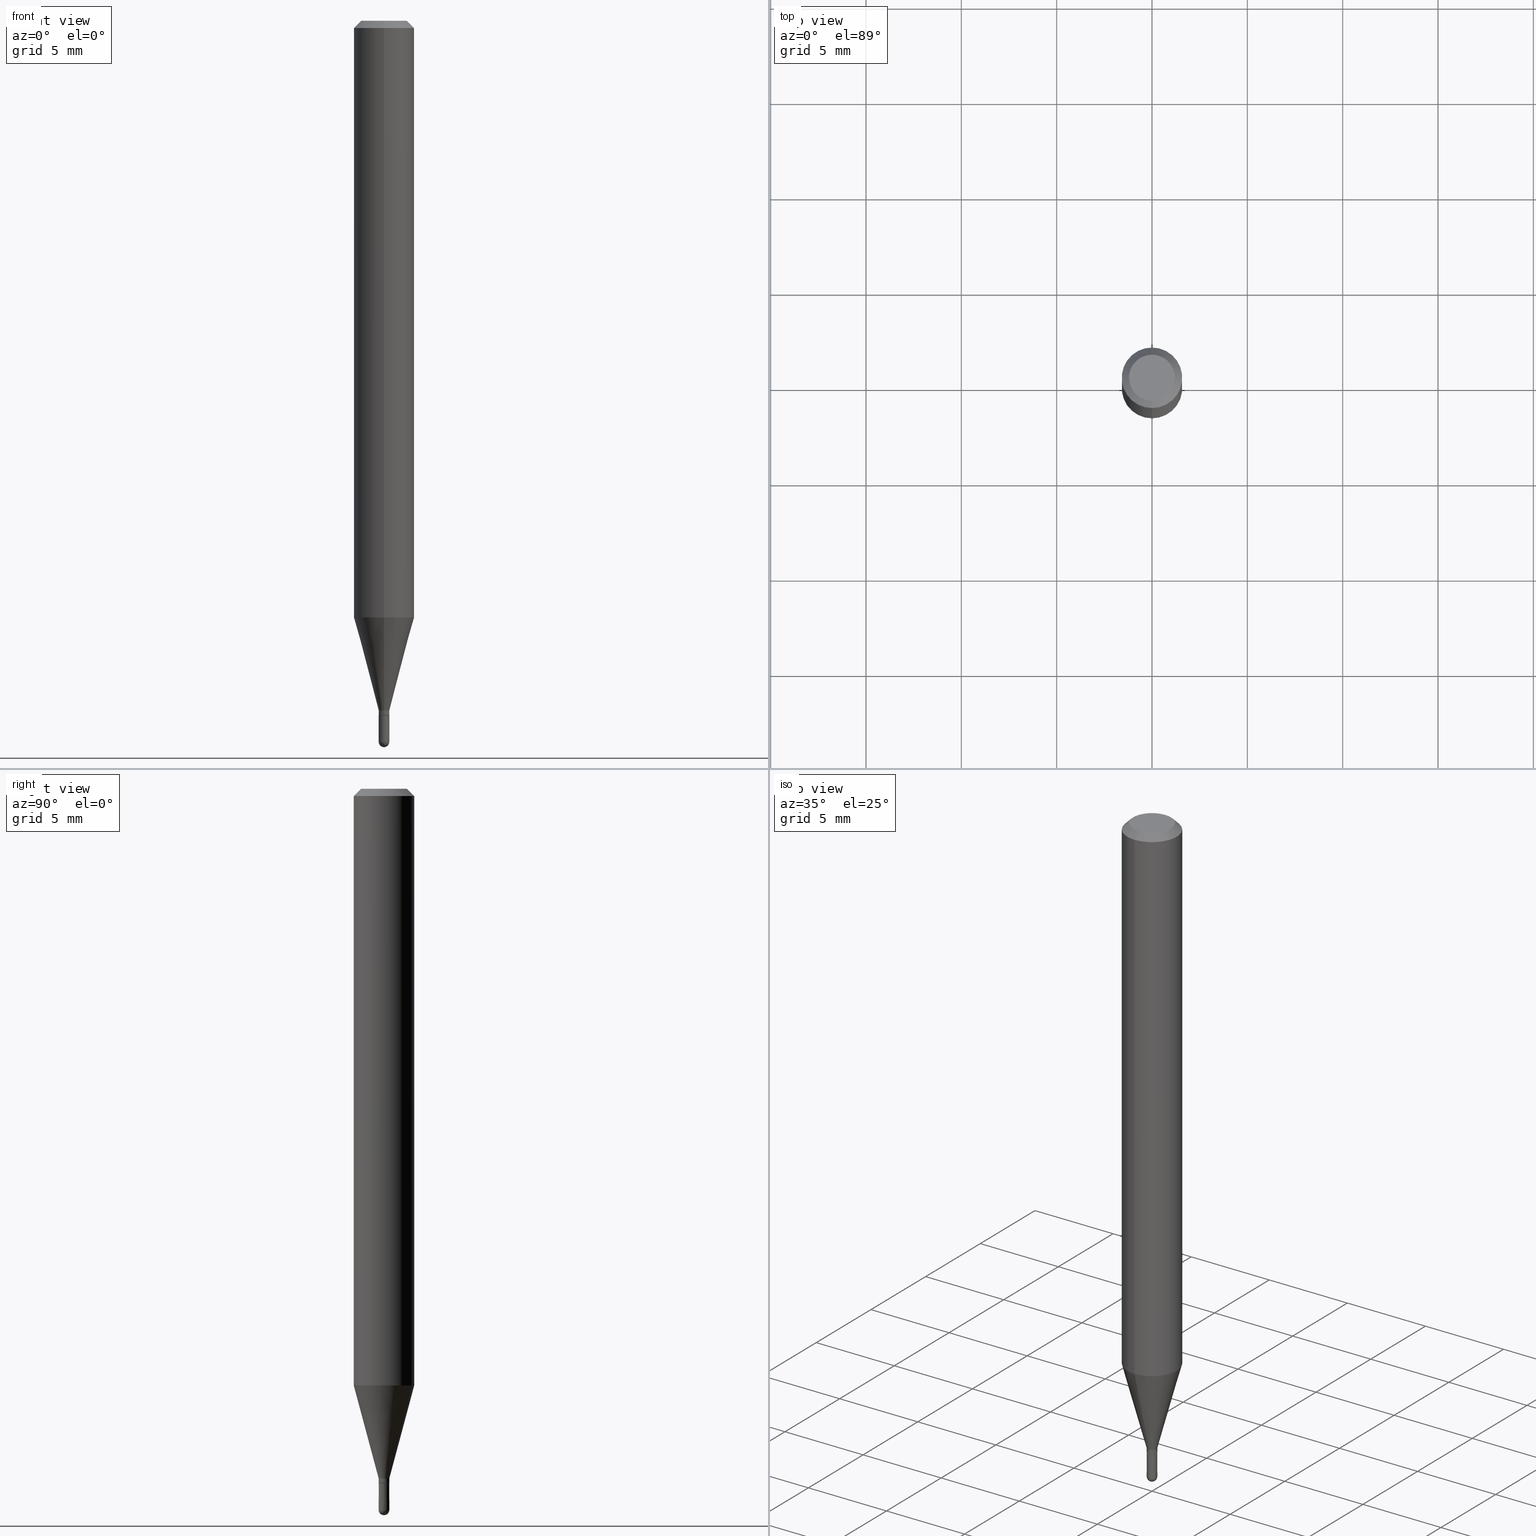
[diagram: canonical four-view strip — front | top / right | iso, engineering-drawing reading convention]
A machine part, canonical four-view strip (front | top / right | iso — engineering-drawing reading convention). The complete STEP part file that produces these views, byte-faithful:
ISO-10303-21;
HEADER;
FILE_DESCRIPTION (( 'STEP AP203' ),
    '1' );
FILE_NAME ('03157.STEP',
    '2024-03-08T18:23:30',
    ( '' ),
    ( '' ),
    'SwSTEP 2.0',
    'SolidWorks 2023',
    '' );
FILE_SCHEMA (( 'CONFIG_CONTROL_DESIGN' ));
ENDSEC;

DATA;
#1 = AXIS2_PLACEMENT_3D ( 'NONE', #57, #407, #51 ) ;
#2 = EDGE_LOOP ( 'NONE', ( #235, #357, #40, #107 ) ) ;
#3 = ADVANCED_FACE ( 'NONE', ( #43 ), #322, .T. ) ;
#4 = FACE_OUTER_BOUND ( 'NONE', #406, .T. ) ;
#5 =( NAMED_UNIT ( * ) SI_UNIT ( $, .STERADIAN. ) SOLID_ANGLE_UNIT ( ) );
#6 = ORIENTED_EDGE ( 'NONE', *, *, #140, .T. ) ;
#7 = CARTESIAN_POINT ( 'NONE',  ( 7.815970093364685978E-17, 0.01099999999999472233, -1.489000000000000323 ) ) ;
#8 = EDGE_CURVE ( 'NONE', #353, #36, #296, .T. ) ;
#9 = AXIS2_PLACEMENT_3D ( 'NONE', #150, #35, #501 ) ;
#10 = AXIS2_PLACEMENT_3D ( 'NONE', #285, #127, #488 ) ;
#11 = ORIENTED_EDGE ( 'NONE', *, *, #433, .F. ) ;
#12 = CARTESIAN_POINT ( 'NONE',  ( -7.681258945451356721E-17, -0.01100000000000489475, -1.424000000000000155 ) ) ;
#13 = ORIENTED_EDGE ( 'NONE', *, *, #438, .T. ) ;
#14 = ADVANCED_FACE ( 'NONE', ( #476 ), #120, .F. ) ;
#15 = CARTESIAN_POINT ( 'NONE',  ( 3.482338406495332832E-29, -4.971882563504380638E-15, -1.424000000000000155 ) ) ;
#16 = CARTESIAN_POINT ( 'NONE',  ( 3.641303052409669428E-29, -5.198815713537445098E-15, -1.489000000000000323 ) ) ;
#17 = DIRECTION ( 'NONE',  ( -2.445462364111890734E-29, 3.491490564258693364E-15, 1.000000000000000000 ) ) ;
#18 = CARTESIAN_POINT ( 'NONE',  ( 3.012319032265885643E-29, -4.300815924236401857E-15, -1.231799383410203452 ) ) ;
#19 = CONICAL_SURFACE ( 'NONE', #62, 0.01099999999999992130, 0.2617993877991502960 ) ;
#20 = SHAPE_DEFINITION_REPRESENTATION ( #39, #470 ) ;
#21 = FACE_OUTER_BOUND ( 'NONE', #2, .T. ) ;
#22 = ADVANCED_FACE ( 'NONE', ( #4 ), #163, .T. ) ;
#23 = APPROVAL_ROLE ( '' ) ;
#24 = CARTESIAN_POINT ( 'NONE',  ( 3.666792184900558820E-29, -5.239242675483312026E-15, -1.500000000000000222 ) ) ;
#25 = DIRECTION ( 'NONE',  ( -1.000000000000000000, 6.982962677686265922E-15, -4.883557194083112340E-29 ) ) ;
#26 = AXIS2_PLACEMENT_3D ( 'NONE', #142, #94, #376 ) ;
#27 = CIRCLE ( 'NONE', #223, 0.01099999999999999936 ) ;
#28 = APPROVAL_STATUS ( 'not_yet_approved' ) ;
#29 = CYLINDRICAL_SURFACE ( 'NONE', #454, 0.01099999999999992130 ) ;
#30 = ORIENTED_EDGE ( 'NONE', *, *, #387, .T. ) ;
#31 = CC_DESIGN_DATE_AND_TIME_ASSIGNMENT ( #64, #146, ( #210 ) ) ;
#32 = COORDINATED_UNIVERSAL_TIME_OFFSET ( 5, 0, .BEHIND. ) ;
#33 = DIRECTION ( 'NONE',  ( -2.445468806185136597E-29, 3.491481338843145583E-15, 1.000000000000000000 ) ) ;
#34 = EDGE_LOOP ( 'NONE', ( #50, #126 ) ) ;
#35 = DIRECTION ( 'NONE',  ( -2.445462364111890734E-29, 3.491490564258693364E-15, 1.000000000000000000 ) ) ;
#36 = VERTEX_POINT ( 'NONE', #61 ) ;
#37 = DIRECTION ( 'NONE',  ( 1.000000000000000000, -6.982962677686245411E-15, 0.000000000000000000 ) ) ;
#38 = EDGE_LOOP ( 'NONE', ( #186, #304, #49, #128, #421 ) ) ;
#39 = PRODUCT_DEFINITION_SHAPE ( 'NONE', 'NONE',  #210 ) ;
#40 = ORIENTED_EDGE ( 'NONE', *, *, #331, .F. ) ;
#41 = EDGE_CURVE ( 'NONE', #36, #425, #292, .T. ) ;
#42 = EDGE_CURVE ( 'NONE', #478, #366, #243, .T. ) ;
#43 = FACE_OUTER_BOUND ( 'NONE', #402, .T. ) ;
#44 = AXIS2_PLACEMENT_3D ( 'NONE', #417, #378, #173 ) ;
#45 = PRODUCT_DEFINITION_FORMATION_WITH_SPECIFIED_SOURCE ( 'ANY', '', #97, .NOT_KNOWN. ) ;
#46 = ORIENTED_EDGE ( 'NONE', *, *, #284, .T. ) ;
#47 = ADVANCED_FACE ( 'NONE', ( #486 ), #221, .T. ) ;
#48 = EDGE_CURVE ( 'NONE', #80, #240, #123, .T. ) ;
#49 = ORIENTED_EDGE ( 'NONE', *, *, #42, .T. ) ;
#50 = ORIENTED_EDGE ( 'NONE', *, *, #325, .T. ) ;
#51 = DIRECTION ( 'NONE',  ( -6.982962677686265922E-15, -1.000000000000000000, 0.000000000000000000 ) ) ;
#52 = AXIS2_PLACEMENT_3D ( 'NONE', #282, #440, #165 ) ;
#53 = CC_DESIGN_APPROVAL ( #465, ( #348 ) ) ;
#54 = DIRECTION ( 'NONE',  ( 6.982962677686265922E-15, 1.000000000000000000, -3.483106191921935554E-15 ) ) ;
#55 = CARTESIAN_POINT ( 'NONE',  ( 3.668193546167777772E-31, -5.237235846387957191E-17, -0.01499999999999976179 ) ) ;
#56 = LINE ( 'NONE', #290, #401 ) ;
#57 = CARTESIAN_POINT ( 'NONE',  ( 3.505570298954396213E-29, -5.005051723864838656E-15, -1.433500000000000218 ) ) ;
#58 = CARTESIAN_POINT ( 'NONE',  ( 3.668193546167777772E-31, -5.237235846387957191E-17, -0.01499999999999976179 ) ) ;
#59 = CALENDAR_DATE ( 2024, 8, 3 ) ;
#60 = AXIS2_PLACEMENT_3D ( 'NONE', #295, #93, #209 ) ;
#61 = CARTESIAN_POINT ( 'NONE',  ( -7.332110811567072031E-17, -0.01050000000000500706, -1.434000000000000163 ) ) ;
#62 = AXIS2_PLACEMENT_3D ( 'NONE', #457, #68, #347 ) ;
#63 = ADVANCED_FACE ( 'NONE', ( #21 ), #178, .T. ) ;
#64 = DATE_AND_TIME ( #380, #69 ) ;
#65 = DIRECTION ( 'NONE',  ( -6.982962677686265922E-15, -1.000000000000000000, 3.491490564258692970E-15 ) ) ;
#66 = EDGE_CURVE ( 'NONE', #240, #512, #217, .T. ) ;
#67 = CARTESIAN_POINT ( 'NONE',  ( -3.773273898774340269E-16, -0.04749999999999999362, 4.053348826974133585E-16 ) ) ;
#68 = DIRECTION ( 'NONE',  ( -2.445462364111890734E-29, 3.491490564258693364E-15, 1.000000000000000000 ) ) ;
#69 = LOCAL_TIME ( 13, 23, 30.00000000000000000, #222 ) ;
#70 = PERSON ( 'UNSPECIFIED', 'UNSPECIFIED', 'UNSPECIFIED', ('UNSPECIFIED'), ('UNSPECIFIED'), ('UNSPECIFIED') ) ;
#71 = CARTESIAN_POINT ( 'NONE',  ( 7.460698725484556683E-17, 0.01049999999999499251, -1.434000000000000163 ) ) ;
#72 = ORIENTED_EDGE ( 'NONE', *, *, #294, .F. ) ;
#73 = DIRECTION ( 'NONE',  ( -2.445462364111890454E-29, 3.491490564258693759E-15, 1.000000000000000000 ) ) ;
#74 = PLANE ( 'NONE',  #463 ) ;
#75 = EDGE_CURVE ( 'NONE', #157, #427, #139, .T. ) ;
#76 = VECTOR ( 'NONE', #73, 39.37007874015748143 ) ;
#77 = APPROVAL_PERSON_ORGANIZATION ( #375, #465, #334 ) ;
#78 = CARTESIAN_POINT ( 'NONE',  ( -7.681258945451356721E-17, -0.01100000000000489475, -1.424000000000000155 ) ) ;
#79 = ORIENTED_EDGE ( 'NONE', *, *, #453, .T. ) ;
#80 = VERTEX_POINT ( 'NONE', #490 ) ;
#81 = CC_DESIGN_PERSON_AND_ORGANIZATION_ASSIGNMENT ( #218, #213, ( #45 ) ) ;
#82 = DIRECTION ( 'NONE',  ( -1.000000000000000000, 6.982962677686265922E-15, -4.876176775795935793E-29 ) ) ;
#83 = CIRCLE ( 'NONE', #422, 0.01099999999999999936 ) ;
#84 = EDGE_LOOP ( 'NONE', ( #273, #6, #242, #504 ) ) ;
#85 = LINE ( 'NONE', #172, #464 ) ;
#86 = ORIENTED_EDGE ( 'NONE', *, *, #206, .T. ) ;
#87 = DIRECTION ( 'NONE',  ( -2.445468806185136597E-29, 3.491481338843145583E-15, 1.000000000000000000 ) ) ;
#88 = VERTEX_POINT ( 'NONE', #299 ) ;
#89 = CARTESIAN_POINT ( 'NONE',  ( 2.611244553918690977E-16, 0.01099999999999494958, -1.424000000000000155 ) ) ;
#90 = ADVANCED_FACE ( 'NONE', ( #492 ), #415, .T. ) ;
#91 = AXIS2_PLACEMENT_3D ( 'NONE', #344, #153, #265 ) ;
#92 = CONICAL_SURFACE ( 'NONE', #506, 0.01099999999999992130, 0.2617993877991502960 ) ;
#93 = DIRECTION ( 'NONE',  ( -2.445468806185136597E-29, 3.491481338843145583E-15, 1.000000000000000000 ) ) ;
#94 = DIRECTION ( 'NONE',  ( -2.445468806185136597E-29, 3.491481338843145583E-15, 1.000000000000000000 ) ) ;
#95 = DIRECTION ( 'NONE',  ( -6.982962677686266711E-15, -1.000000000000000000, 0.000000000000000000 ) ) ;
#96 = DIRECTION ( 'NONE',  ( -2.445468806185136597E-29, 3.491481338843145583E-15, 1.000000000000000000 ) ) ;
#97 = PRODUCT ( '03157', '03157', '', ( #419 ) ) ;
#98 = CARTESIAN_POINT ( 'NONE',  ( -4.364351673553916201E-16, -0.06250000000000000000, 2.182181602661683106E-16 ) ) ;
#99 = AXIS2_PLACEMENT_3D ( 'NONE', #55, #208, #437 ) ;
#100 = COORDINATED_UNIVERSAL_TIME_OFFSET ( 5, 0, .BEHIND. ) ;
#101 = EDGE_CURVE ( 'NONE', #88, #396, #56, .T. ) ;
#102 = APPLICATION_CONTEXT ( 'configuration controlled 3d designs of mechanical parts and assemblies' ) ;
#103 = CARTESIAN_POINT ( 'NONE',  ( -0.01099999999999999936, -5.024640275785647368E-15, -1.489000000000000323 ) ) ;
#104 = APPLICATION_PROTOCOL_DEFINITION ( 'international standard', 'config_control_design', 1994, #377 ) ;
#105 = EDGE_CURVE ( 'NONE', #425, #88, #364, .T. ) ;
#106 = CARTESIAN_POINT ( 'NONE',  ( 3.506793030136452033E-29, -5.006797469146965741E-15, -1.434000000000000163 ) ) ;
#107 = ORIENTED_EDGE ( 'NONE', *, *, #42, .F. ) ;
#108 = DATE_TIME_ROLE ( 'classification_date' ) ;
#109 = DIRECTION ( 'NONE',  ( 1.839019923739601104E-15, 0.2588190451025250693, 0.9659258262890670910 ) ) ;
#110 = ORIENTED_EDGE ( 'NONE', *, *, #433, .T. ) ;
#111 = EDGE_CURVE ( 'NONE', #271, #512, #392, .T. ) ;
#112 = LINE ( 'NONE', #71, #409 ) ;
#113 = ORIENTED_EDGE ( 'NONE', *, *, #194, .T. ) ;
#114 = CARTESIAN_POINT ( 'NONE',  ( 4.440892098500928887E-16, 0.06249999999999995143, -0.01499999999999997863 ) ) ;
#115 = ORIENTED_EDGE ( 'NONE', *, *, #325, .F. ) ;
#116 = CARTESIAN_POINT ( 'NONE',  ( 3.641303052409669428E-29, -5.198815713537445098E-15, -1.489000000000000323 ) ) ;
#117 = ORIENTED_EDGE ( 'NONE', *, *, #8, .F. ) ;
#118 = AXIS2_PLACEMENT_3D ( 'NONE', #411, #413, #65 ) ;
#119 = VERTEX_POINT ( 'NONE', #67 ) ;
#120 = PLANE ( 'NONE',  #277 ) ;
#121 = DIRECTION ( 'NONE',  ( -6.982962677686265922E-15, -1.000000000000000000, 0.000000000000000000 ) ) ;
#122 = EDGE_CURVE ( 'NONE', #281, #271, #212, .T. ) ;
#123 = CIRCLE ( 'NONE', #190, 0.06250000000000000000 ) ;
#124 = CARTESIAN_POINT ( 'NONE',  ( 3.506802268069485929E-29, -5.006784239901070239E-15, -1.434000000000000163 ) ) ;
#125 = CIRCLE ( 'NONE', #489, 0.04749999999999999362 ) ;
#126 = ORIENTED_EDGE ( 'NONE', *, *, #372, .T. ) ;
#127 = DIRECTION ( 'NONE',  ( -2.445462364111890734E-29, 3.491490564258693364E-15, 1.000000000000000000 ) ) ;
#128 = ORIENTED_EDGE ( 'NONE', *, *, #156, .T. ) ;
#129 = DIRECTION ( 'NONE',  ( -2.445462364111890734E-29, 3.491490564258693364E-15, 1.000000000000000000 ) ) ;
#130 = CARTESIAN_POINT ( 'NONE',  ( -7.332110811567072031E-17, -0.01050000000000500706, -1.434000000000000163 ) ) ;
#131 = EDGE_CURVE ( 'NONE', #475, #157, #174, .T. ) ;
#132 = DIRECTION ( 'NONE',  ( -2.445468806185136597E-29, 3.491481338843145583E-15, 1.000000000000000000 ) ) ;
#133 = CC_DESIGN_SECURITY_CLASSIFICATION ( #348, ( #45 ) ) ;
#134 = DIRECTION ( 'NONE',  ( -6.982962677686265922E-15, -1.000000000000000000, 0.000000000000000000 ) ) ;
#135 = FACE_OUTER_BOUND ( 'NONE', #439, .T. ) ;
#136 = CC_DESIGN_PERSON_AND_ORGANIZATION_ASSIGNMENT ( #300, #385, ( #97 ) ) ;
#137 = DIRECTION ( 'NONE',  ( -2.445462364111890734E-29, 3.491490564258693364E-15, 1.000000000000000000 ) ) ;
#138 = CALENDAR_DATE ( 2024, 8, 3 ) ;
#139 = LINE ( 'NONE', #248, #505 ) ;
#140 = EDGE_CURVE ( 'NONE', #396, #225, #141, .T. ) ;
#141 = CIRCLE ( 'NONE', #44, 0.01099999999999992130 ) ;
#142 = CARTESIAN_POINT ( 'NONE',  ( 0.000000000000000000, 0.000000000000000000, 0.000000000000000000 ) ) ;
#143 = AXIS2_PLACEMENT_3D ( 'NONE', #15, #354, #362 ) ;
#144 = DIRECTION ( 'NONE',  ( 1.000000000000000000, 0.000000000000000000, 0.000000000000000000 ) ) ;
#145 = FACE_OUTER_BOUND ( 'NONE', #198, .T. ) ;
#146 = DATE_TIME_ROLE ( 'creation_date' ) ;
#147 = FACE_OUTER_BOUND ( 'NONE', #461, .T. ) ;
#148 = VERTEX_POINT ( 'NONE', #24 ) ;
#149 = PERSON_AND_ORGANIZATION ( #70, #289 ) ;
#150 = CARTESIAN_POINT ( 'NONE',  ( 3.506793030136452033E-29, -5.006797469146965741E-15, -1.434000000000000163 ) ) ;
#151 = ORIENTED_EDGE ( 'NONE', *, *, #122, .T. ) ;
#152 = CIRCLE ( 'NONE', #215, 0.01099999999999999936 ) ;
#153 = DIRECTION ( 'NONE',  ( -2.445462364111890734E-29, 3.491490564258693364E-15, 1.000000000000000000 ) ) ;
#154 = ORIENTED_EDGE ( 'NONE', *, *, #41, .T. ) ;
#155 = CARTESIAN_POINT ( 'NONE',  ( 3.640362369491571484E-29, -5.200162825016506087E-15, -1.489000000000000101 ) ) ;
#156 = EDGE_CURVE ( 'NONE', #366, #195, #180, .T. ) ;
#157 = VERTEX_POINT ( 'NONE', #103 ) ;
#158 = CIRCLE ( 'NONE', #253, 0.01099999999999999936 ) ;
#159 = CC_DESIGN_PERSON_AND_ORGANIZATION_ASSIGNMENT ( #177, #184, ( #210 ) ) ;
#160 = CIRCLE ( 'NONE', #10, 0.06250000000000000000 ) ;
#161 = ORIENTED_EDGE ( 'NONE', *, *, #477, .F. ) ;
#162 = EDGE_CURVE ( 'NONE', #281, #119, #278, .T. ) ;
#163 = CYLINDRICAL_SURFACE ( 'NONE', #346, 0.01099999999999992130 ) ;
#164 = ADVANCED_FACE ( 'NONE', ( #171 ), #424, .T. ) ;
#165 = DIRECTION ( 'NONE',  ( -6.982962677686265922E-15, -1.000000000000000000, 3.491490564258692970E-15 ) ) ;
#166 = ORIENTED_EDGE ( 'NONE', *, *, #387, .F. ) ;
#167 = CARTESIAN_POINT ( 'NONE',  ( 3.506793030136452033E-29, -5.006797469146965741E-15, -1.434000000000000163 ) ) ;
#168 = AXIS2_PLACEMENT_3D ( 'NONE', #452, #137, #134 ) ;
#169 = ORIENTED_EDGE ( 'NONE', *, *, #441, .T. ) ;
#170 = CARTESIAN_POINT ( 'NONE',  ( -7.681258945451196484E-17, -0.01100000000000512027, -1.489000000000000323 ) ) ;
#171 = FACE_OUTER_BOUND ( 'NONE', #442, .T. ) ;
#172 = CARTESIAN_POINT ( 'NONE',  ( -4.287811248607203282E-16, -0.06250000000000005551, -0.01499999999999954321 ) ) ;
#173 = DIRECTION ( 'NONE',  ( -6.982962677686266711E-15, -1.000000000000000000, 0.000000000000000000 ) ) ;
#174 = CIRCLE ( 'NONE', #393, 0.01099999999999999936 ) ;
#175 = CIRCLE ( 'NONE', #143, 0.01099999999999992130 ) ;
#176 = DIRECTION ( 'NONE',  ( -2.445462364111890454E-29, 3.491490564258693759E-15, 1.000000000000000000 ) ) ;
#177 = PERSON_AND_ORGANIZATION ( #70, #289 ) ;
#178 = SPHERICAL_SURFACE ( 'NONE', #252, 0.01099999999999984497 ) ;
#179 = APPROVAL_STATUS ( 'not_yet_approved' ) ;
#180 = LINE ( 'NONE', #335, #338 ) ;
#181 = AXIS2_PLACEMENT_3D ( 'NONE', #196, #315, #121 ) ;
#182 = CONICAL_SURFACE ( 'NONE', #356, 0.01049999999999999892, 0.7853981633974739252 ) ;
#183 = DIRECTION ( 'NONE',  ( -2.445468806185136597E-29, 3.491481338843145583E-15, 1.000000000000000000 ) ) ;
#184 = PERSON_AND_ORGANIZATION_ROLE ( 'creator' ) ;
#185 = DIRECTION ( 'NONE',  ( -2.445462364111890734E-29, 3.491490564258693364E-15, 1.000000000000000000 ) ) ;
#186 = ORIENTED_EDGE ( 'NONE', *, *, #75, .F. ) ;
#187 = CARTESIAN_POINT ( 'NONE',  ( 0.000000000000000000, 0.000000000000000000, 0.000000000000000000 ) ) ;
#188 = CARTESIAN_POINT ( 'NONE',  ( 3.641303052409669428E-29, -5.198815713537445098E-15, -1.489000000000000323 ) ) ;
#189 = DIRECTION ( 'NONE',  ( -6.982962677686266711E-15, -1.000000000000000000, 3.491490564258693364E-15 ) ) ;
#190 = AXIS2_PLACEMENT_3D ( 'NONE', #18, #448, #257 ) ;
#191 = ORIENTED_EDGE ( 'NONE', *, *, #131, .F. ) ;
#192 = AXIS2_PLACEMENT_3D ( 'NONE', #167, #129, #245 ) ;
#193 = CARTESIAN_POINT ( 'NONE',  ( 7.638334409424554770E-17, 0.01049999999999499251, -1.434000000000000163 ) ) ;
#194 = EDGE_CURVE ( 'NONE', #396, #80, #328, .T. ) ;
#195 = VERTEX_POINT ( 'NONE', #342 ) ;
#196 = CARTESIAN_POINT ( 'NONE',  ( 3.506793030136452033E-29, -5.006797469146965741E-15, -1.434000000000000163 ) ) ;
#197 = CIRCLE ( 'NONE', #381, 0.01099999999999984497 ) ;
#198 = EDGE_LOOP ( 'NONE', ( #283, #399, #237, #432 ) ) ;
#199 = ORIENTED_EDGE ( 'NONE', *, *, #230, .F. ) ;
#200 = CARTESIAN_POINT ( 'NONE',  ( -5.856615339447773743E-45, 8.361738661883173652E-31, 2.394890808951254395E-16 ) ) ;
#201 = EDGE_CURVE ( 'NONE', #157, #478, #27, .T. ) ;
#202 = ORIENTED_EDGE ( 'NONE', *, *, #111, .T. ) ;
#203 = AXIS2_PLACEMENT_3D ( 'NONE', #408, #360, #54 ) ;
#204 = AXIS2_PLACEMENT_3D ( 'NONE', #418, #330, #379 ) ;
#205 = CARTESIAN_POINT ( 'NONE',  ( -7.681258945454838802E-17, -0.01099999999999992130, 3.840639620684535179E-17 ) ) ;
#206 = EDGE_CURVE ( 'NONE', #512, #271, #373, .T. ) ;
#207 = ORIENTED_EDGE ( 'NONE', *, *, #48, .T. ) ;
#208 = DIRECTION ( 'NONE',  ( 2.445462364111890734E-29, -3.491490564258693364E-15, -1.000000000000000000 ) ) ;
#209 = DIRECTION ( 'NONE',  ( 1.000000000000000000, -6.982962677686245411E-15, 0.000000000000000000 ) ) ;
#210 = PRODUCT_DEFINITION ( 'UNKNOWN', '', #45, #493 ) ;
#211 = LENGTH_MEASURE_WITH_UNIT ( LENGTH_MEASURE( 0.02539999999999999897 ), #398 );
#212 = LINE ( 'NONE', #368, #287 ) ;
#213 = PERSON_AND_ORGANIZATION_ROLE ( 'design_supplier' ) ;
#214 = CLOSED_SHELL ( 'NONE', ( #22, #320, #423, #90, #451, #280, #359, #3, #336, #350, #397, #275 ) ) ;
#215 = AXIS2_PLACEMENT_3D ( 'NONE', #259, #33, #471 ) ;
#216 = CIRCLE ( 'NONE', #1, 0.01099999999999992477 ) ;
#217 = LINE ( 'NONE', #98, #261 ) ;
#218 = PERSON_AND_ORGANIZATION ( #70, #289 ) ;
#219 = DIRECTION ( 'NONE',  ( -2.445462364111890454E-29, 3.491490564258693759E-15, 1.000000000000000000 ) ) ;
#220 = APPROVAL_DATE_TIME ( #502, #340 ) ;
#221 = CYLINDRICAL_SURFACE ( 'NONE', #26, 0.01099999999999999936 ) ;
#222 = COORDINATED_UNIVERSAL_TIME_OFFSET ( 5, 0, .BEHIND. ) ;
#223 = AXIS2_PLACEMENT_3D ( 'NONE', #116, #301, #267 ) ;
#224 = DIRECTION ( 'NONE',  ( -6.982962677686265922E-15, -1.000000000000000000, 0.000000000000000000 ) ) ;
#225 = VERTEX_POINT ( 'NONE', #78 ) ;
#226 = CARTESIAN_POINT ( 'NONE',  ( 3.640362369491571484E-29, -5.200162825016506087E-15, -1.489000000000000101 ) ) ;
#227 = ORIENTED_EDGE ( 'NONE', *, *, #453, .F. ) ;
#228 = EDGE_CURVE ( 'NONE', #353, #88, #112, .T. ) ;
#229 = FACE_OUTER_BOUND ( 'NONE', #467, .T. ) ;
#230 = EDGE_CURVE ( 'NONE', #80, #271, #507, .T. ) ;
#231 = UNCERTAINTY_MEASURE_WITH_UNIT (LENGTH_MEASURE( 1.000000000000000082E-05 ), #370, 'distance_accuracy_value', 'NONE');
#232 = DIRECTION ( 'NONE',  ( -2.445462364111890454E-29, 3.491490564258693759E-15, 1.000000000000000000 ) ) ;
#233 = APPROVAL_PERSON_ORGANIZATION ( #462, #340, #23 ) ;
#234 = DIRECTION ( 'NONE',  ( 5.024295867788190974E-15, 0.7071067811865681119, 0.7071067811865270336 ) ) ;
#235 = ORIENTED_EDGE ( 'NONE', *, *, #284, .F. ) ;
#236 = ORIENTED_EDGE ( 'NONE', *, *, #105, .T. ) ;
#237 = ORIENTED_EDGE ( 'NONE', *, *, #105, .F. ) ;
#238 = DIRECTION ( 'NONE',  ( -6.982962677686266711E-15, -1.000000000000000000, 3.491490564258693364E-15 ) ) ;
#239 = DIRECTION ( 'NONE',  ( -2.445462364111890454E-29, 3.491490564258693759E-15, 1.000000000000000000 ) ) ;
#240 = VERTEX_POINT ( 'NONE', #263 ) ;
#241 = LINE ( 'NONE', #205, #480 ) ;
#242 = ORIENTED_EDGE ( 'NONE', *, *, #477, .T. ) ;
#243 = CIRCLE ( 'NONE', #60, 0.01099999999999999936 ) ;
#244 = AXIS2_PLACEMENT_3D ( 'NONE', #420, #426, #303 ) ;
#245 = DIRECTION ( 'NONE',  ( -6.982962677686265922E-15, -1.000000000000000000, 0.000000000000000000 ) ) ;
#246 = AXIS2_PLACEMENT_3D ( 'NONE', #187, #260, #144 ) ;
#247 = DIRECTION ( 'NONE',  ( -6.982962677686265922E-15, -1.000000000000000000, 0.000000000000000000 ) ) ;
#248 = CARTESIAN_POINT ( 'NONE',  ( -0.01099999999999999936, 7.815970093361101591E-17, -5.410828599280396199E-31 ) ) ;
#249 = PERSON_AND_ORGANIZATION_ROLE ( 'classification_officer' ) ;
#250 = DIRECTION ( 'NONE',  ( -2.445462364111890734E-29, 3.491490564258693364E-15, 1.000000000000000000 ) ) ;
#251 = PERSON_AND_ORGANIZATION ( #70, #289 ) ;
#252 = AXIS2_PLACEMENT_3D ( 'NONE', #444, #450, #247 ) ;
#253 = AXIS2_PLACEMENT_3D ( 'NONE', #188, #183, #37 ) ;
#254 = AXIS2_PLACEMENT_3D ( 'NONE', #324, #132, #288 ) ;
#255 = DIRECTION ( 'NONE',  ( 1.000000000000000000, -6.982962677686245411E-15, 0.000000000000000000 ) ) ;
#256 = DATE_AND_TIME ( #494, #358 ) ;
#257 = DIRECTION ( 'NONE',  ( -6.982962677686265922E-15, -1.000000000000000000, 4.370956789862821150E-15 ) ) ;
#258 = CALENDAR_DATE ( 2024, 8, 3 ) ;
#259 = CARTESIAN_POINT ( 'NONE',  ( 3.506802268069485929E-29, -5.006784239901070239E-15, -1.434000000000000163 ) ) ;
#260 = DIRECTION ( 'NONE',  ( 0.000000000000000000, 0.000000000000000000, 1.000000000000000000 ) ) ;
#261 = VECTOR ( 'NONE', #176, 39.37007874015748143 ) ;
#262 = CC_DESIGN_PERSON_AND_ORGANIZATION_ASSIGNMENT ( #302, #333, ( #45 ) ) ;
#263 = CARTESIAN_POINT ( 'NONE',  ( -4.364351673553613969E-16, -0.06250000000000428824, -1.231799383410203230 ) ) ;
#264 = ORIENTED_EDGE ( 'NONE', *, *, #66, .T. ) ;
#265 = DIRECTION ( 'NONE',  ( -6.982962677686265922E-15, -1.000000000000000000, 3.483106191921935554E-15 ) ) ;
#266 = ORIENTED_EDGE ( 'NONE', *, *, #101, .F. ) ;
#267 = DIRECTION ( 'NONE',  ( 1.000000000000000000, -6.982962677686245411E-15, 0.000000000000000000 ) ) ;
#268 = ORIENTED_EDGE ( 'NONE', *, *, #441, .F. ) ;
#269 = CARTESIAN_POINT ( 'NONE',  ( 7.815970093364526973E-17, 0.01099999999999494958, -1.424000000000000155 ) ) ;
#270 = AXIS2_PLACEMENT_3D ( 'NONE', #226, #468, #308 ) ;
#271 = VERTEX_POINT ( 'NONE', #114 ) ;
#272 = CC_DESIGN_APPROVAL ( #340, ( #210 ) ) ;
#273 = ORIENTED_EDGE ( 'NONE', *, *, #194, .F. ) ;
#274 = CARTESIAN_POINT ( 'NONE',  ( 7.681258945458397305E-17, 0.01099999999999499121, -1.434000000000000163 ) ) ;
#275 = ADVANCED_FACE ( 'NONE', ( #229 ), #29, .T. ) ;
#276 = DIRECTION ( 'NONE',  ( -2.445462364111890734E-29, 3.491490564258693364E-15, 1.000000000000000000 ) ) ;
#277 = AXIS2_PLACEMENT_3D ( 'NONE', #274, #435, #82 ) ;
#278 = CIRCLE ( 'NONE', #204, 0.04749999999999999362 ) ;
#279 = DIRECTION ( 'NONE',  ( 1.000000000000000000, -6.982962677686245411E-15, 0.000000000000000000 ) ) ;
#280 = ADVANCED_FACE ( 'NONE', ( #390 ), #19, .T. ) ;
#281 = VERTEX_POINT ( 'NONE', #386 ) ;
#282 = CARTESIAN_POINT ( 'NONE',  ( 0.000000000000000000, 0.000000000000000000, 0.000000000000000000 ) ) ;
#283 = ORIENTED_EDGE ( 'NONE', *, *, #294, .T. ) ;
#284 = EDGE_CURVE ( 'NONE', #148, #478, #197, .T. ) ;
#285 = CARTESIAN_POINT ( 'NONE',  ( 3.012319032265885643E-29, -4.300815924236401857E-15, -1.231799383410203452 ) ) ;
#286 = DIRECTION ( 'NONE',  ( -4.937700262164674260E-15, -0.7071067811865632269, 0.7071067811865319186 ) ) ;
#287 = VECTOR ( 'NONE', #371, 39.37007874015748143 ) ;
#288 = DIRECTION ( 'NONE',  ( 1.000000000000000000, -6.982962677686265922E-15, 4.876176775795936353E-29 ) ) ;
#289 = ORGANIZATION ( 'UNSPECIFIED', 'UNSPECIFIED', '' ) ;
#290 = CARTESIAN_POINT ( 'NONE',  ( 7.815970093361044892E-17, 0.01099999999999992130, -3.840639620684535179E-17 ) ) ;
#291 =( NAMED_UNIT ( * ) PLANE_ANGLE_UNIT ( ) SI_UNIT ( $, .RADIAN. ) );
#292 = LINE ( 'NONE', #130, #337 ) ;
#293 = APPROVAL_DATE_TIME ( #256, #465 ) ;
#294 = EDGE_CURVE ( 'NONE', #36, #353, #305, .T. ) ;
#295 = CARTESIAN_POINT ( 'NONE',  ( 3.641303052409669428E-29, -5.198815713537445098E-15, -1.489000000000000323 ) ) ;
#296 = CIRCLE ( 'NONE', #181, 0.01049999999999999892 ) ;
#297 = APPLICATION_PROTOCOL_DEFINITION ( 'international standard', 'config_control_design', 1994, #102 ) ;
#298 = AXIS2_PLACEMENT_3D ( 'NONE', #58, #250, #456 ) ;
#299 = CARTESIAN_POINT ( 'NONE',  ( 7.815970093364525740E-17, 0.01099999999999488366, -1.433500000000000218 ) ) ;
#300 = PERSON_AND_ORGANIZATION ( #70, #289 ) ;
#301 = DIRECTION ( 'NONE',  ( -2.445468806185136597E-29, 3.491481338843145583E-15, 1.000000000000000000 ) ) ;
#302 = PERSON_AND_ORGANIZATION ( #70, #289 ) ;
#303 = DIRECTION ( 'NONE',  ( -6.982962677686265922E-15, -1.000000000000000000, 0.000000000000000000 ) ) ;
#304 = ORIENTED_EDGE ( 'NONE', *, *, #201, .T. ) ;
#305 = CIRCLE ( 'NONE', #9, 0.01049999999999999892 ) ;
#306 = DIRECTION ( 'NONE',  ( 2.445462364111890454E-29, -3.491490564258693759E-15, -1.000000000000000000 ) ) ;
#307 = ORIENTED_EDGE ( 'NONE', *, *, #8, .T. ) ;
#308 = DIRECTION ( 'NONE',  ( 7.105427357601001070E-15, 1.000000000000000000, 0.000000000000000000 ) ) ;
#309 = ORIENTED_EDGE ( 'NONE', *, *, #66, .F. ) ;
#310 = DIRECTION ( 'NONE',  ( -6.982962677686265922E-15, -1.000000000000000000, 0.000000000000000000 ) ) ;
#311 = EDGE_LOOP ( 'NONE', ( #383, #363, #115, #436, #404 ) ) ;
#312 = CIRCLE ( 'NONE', #270, 0.01099999999999984497 ) ;
#313 = ORIENTED_EDGE ( 'NONE', *, *, #438, .F. ) ;
#314 = LOCAL_TIME ( 13, 23, 30.00000000000000000, #100 ) ;
#315 = DIRECTION ( 'NONE',  ( -2.445462364111890734E-29, 3.491490564258693364E-15, 1.000000000000000000 ) ) ;
#316 = EDGE_CURVE ( 'NONE', #148, #475, #312, .T. ) ;
#317 = CC_DESIGN_PERSON_AND_ORGANIZATION_ASSIGNMENT ( #149, #249, ( #348 ) ) ;
#318 = CARTESIAN_POINT ( 'NONE',  ( 0.000000000000000000, 0.000000000000000000, 0.000000000000000000 ) ) ;
#319 = DIRECTION ( 'NONE',  ( -1.807323732225330928E-15, -0.2588190451025182970, 0.9659258262890689783 ) ) ;
#320 = ADVANCED_FACE ( 'NONE', ( #145 ), #182, .T. ) ;
#321 = EDGE_LOOP ( 'NONE', ( #199, #207, #264, #355 ) ) ;
#322 = CONICAL_SURFACE ( 'NONE', #203, 0.06250000000000000000, 0.7853981633974483900 ) ;
#323 = CONICAL_SURFACE ( 'NONE', #99, 0.06250000000000000000, 0.7853981633974483900 ) ;
#324 = CARTESIAN_POINT ( 'NONE',  ( 0.000000000000000000, 0.000000000000000000, 0.000000000000000000 ) ) ;
#325 = EDGE_CURVE ( 'NONE', #195, #427, #152, .T. ) ;
#326 = EDGE_LOOP ( 'NONE', ( #472, #307, #154, #313 ) ) ;
#327 = CYLINDRICAL_SURFACE ( 'NONE', #254, 0.01099999999999999936 ) ;
#328 = LINE ( 'NONE', #269, #496 ) ;
#329 = FACE_OUTER_BOUND ( 'NONE', #311, .T. ) ;
#330 = DIRECTION ( 'NONE',  ( -2.445462364111890734E-29, 3.491490564258693364E-15, 1.000000000000000000 ) ) ;
#331 = EDGE_CURVE ( 'NONE', #366, #475, #158, .T. ) ;
#332 = DIRECTION ( 'NONE',  ( -2.445468806185136877E-29, 3.491481338843145188E-15, 1.000000000000000000 ) ) ;
#333 = PERSON_AND_ORGANIZATION_ROLE ( 'creator' ) ;
#334 = APPROVAL_ROLE ( '' ) ;
#335 = CARTESIAN_POINT ( 'NONE',  ( 0.01099999999999999936, -7.681258945454891804E-17, 5.363794453375529652E-31 ) ) ;
#336 = ADVANCED_FACE ( 'NONE', ( #147 ), #460, .F. ) ;
#337 = VECTOR ( 'NONE', #286, 39.37007874015748143 ) ;
#338 = VECTOR ( 'NONE', #495, 39.37007874015748143 ) ;
#339 = CARTESIAN_POINT ( 'NONE',  ( 0.000000000000000000, 0.000000000000000000, 0.000000000000000000 ) ) ;
#340 = APPROVAL ( #455, 'UNSPECIFIED' ) ;
#341 = DATE_AND_TIME ( #138, #314 ) ;
#342 = CARTESIAN_POINT ( 'NONE',  ( 0.01099999999999999936, -5.083596829355619552E-15, -1.434000000000000163 ) ) ;
#343 = SECURITY_CLASSIFICATION_LEVEL ( 'unclassified' ) ;
#344 = CARTESIAN_POINT ( 'NONE',  ( 3.668193546167777772E-31, -5.237235846387957191E-17, -0.01499999999999976179 ) ) ;
#345 = ORIENTED_EDGE ( 'NONE', *, *, #316, .F. ) ;
#346 = AXIS2_PLACEMENT_3D ( 'NONE', #318, #276, #238 ) ;
#347 = DIRECTION ( 'NONE',  ( -6.982962677686266711E-15, -1.000000000000000000, 0.000000000000000000 ) ) ;
#348 = SECURITY_CLASSIFICATION ( '', '', #343 ) ;
#349 = EDGE_LOOP ( 'NONE', ( #166, #434, #86, #391 ) ) ;
#350 = ADVANCED_FACE ( 'NONE', ( #503 ), #74, .F. ) ;
#351 = MANIFOLD_SOLID_BREP ( 'Body-Move/Copy2[2]', #214 ) ;
#352 = FACE_OUTER_BOUND ( 'NONE', #321, .T. ) ;
#353 = VERTEX_POINT ( 'NONE', #193 ) ;
#354 = DIRECTION ( 'NONE',  ( -2.445462364111890734E-29, 3.491490564258693364E-15, 1.000000000000000000 ) ) ;
#355 = ORIENTED_EDGE ( 'NONE', *, *, #111, .F. ) ;
#356 = AXIS2_PLACEMENT_3D ( 'NONE', #106, #185, #224 ) ;
#357 = ORIENTED_EDGE ( 'NONE', *, *, #316, .T. ) ;
#358 = LOCAL_TIME ( 13, 23, 30.00000000000000000, #32 ) ;
#359 = ADVANCED_FACE ( 'NONE', ( #352 ), #509, .T. ) ;
#360 = DIRECTION ( 'NONE',  ( 2.445462364111890734E-29, -3.491490564258693364E-15, -1.000000000000000000 ) ) ;
#361 = ORIENTED_EDGE ( 'NONE', *, *, #487, .F. ) ;
#362 = DIRECTION ( 'NONE',  ( -6.982962677686266711E-15, -1.000000000000000000, 0.000000000000000000 ) ) ;
#363 = ORIENTED_EDGE ( 'NONE', *, *, #75, .T. ) ;
#364 = CIRCLE ( 'NONE', #168, 0.01099999999999992477 ) ;
#365 = LINE ( 'NONE', #12, #430 ) ;
#366 = VERTEX_POINT ( 'NONE', #412 ) ;
#367 = CARTESIAN_POINT ( 'NONE',  ( -0.01099999999999999936, -5.024640275785647368E-15, -1.434000000000000163 ) ) ;
#368 = CARTESIAN_POINT ( 'NONE',  ( 4.364351673553919652E-16, 0.06249999999999995143, -0.01499999999999997863 ) ) ;
#369 = MANIFOLD_SOLID_BREP ( 'Body-Move/Copy2[1]', #473 ) ;
#370 =( CONVERSION_BASED_UNIT ( 'INCH', #211 ) LENGTH_UNIT ( ) NAMED_UNIT ( #384 ) );
#371 = DIRECTION ( 'NONE',  ( 4.937700262164548042E-15, 0.7071067811865451302, -0.7071067811865499042 ) ) ;
#372 = EDGE_CURVE ( 'NONE', #427, #195, #83, .T. ) ;
#373 = CIRCLE ( 'NONE', #91, 0.06250000000000000000 ) ;
#374 = CC_DESIGN_DATE_AND_TIME_ASSIGNMENT ( #459, #108, ( #348 ) ) ;
#375 = PERSON_AND_ORGANIZATION ( #70, #289 ) ;
#376 = DIRECTION ( 'NONE',  ( 1.000000000000000000, -6.982962677686265922E-15, 4.876176775795936353E-29 ) ) ;
#377 = APPLICATION_CONTEXT ( 'configuration controlled 3d designs of mechanical parts and assemblies' ) ;
#378 = DIRECTION ( 'NONE',  ( -2.445462364111890734E-29, 3.491490564258693364E-15, 1.000000000000000000 ) ) ;
#379 = DIRECTION ( 'NONE',  ( -6.982962677686266711E-15, -1.000000000000000000, 3.491490564258693364E-15 ) ) ;
#380 = CALENDAR_DATE ( 2024, 8, 3 ) ;
#381 = AXIS2_PLACEMENT_3D ( 'NONE', #155, #25, #310 ) ;
#382 = DIRECTION ( 'NONE',  ( -2.445462364111890734E-29, 3.491490564258693364E-15, 1.000000000000000000 ) ) ;
#383 = ORIENTED_EDGE ( 'NONE', *, *, #131, .T. ) ;
#384 = DIMENSIONAL_EXPONENTS ( 1.000000000000000000, 0.000000000000000000, 0.000000000000000000, 0.000000000000000000, 0.000000000000000000, 0.000000000000000000, 0.000000000000000000 ) ;
#385 = PERSON_AND_ORGANIZATION_ROLE ( 'design_owner' ) ;
#386 = CARTESIAN_POINT ( 'NONE',  ( 3.840629472727447874E-16, 0.04749999999999999362, 7.364327909283752044E-17 ) ) ;
#387 = EDGE_CURVE ( 'NONE', #119, #281, #125, .T. ) ;
#388 = ORIENTED_EDGE ( 'NONE', *, *, #101, .T. ) ;
#389 = PRODUCT_RELATED_PRODUCT_CATEGORY ( 'detail', '', ( #97 ) ) ;
#390 = FACE_OUTER_BOUND ( 'NONE', #84, .T. ) ;
#391 = ORIENTED_EDGE ( 'NONE', *, *, #122, .F. ) ;
#392 = CIRCLE ( 'NONE', #298, 0.06250000000000000000 ) ;
#393 = AXIS2_PLACEMENT_3D ( 'NONE', #16, #96, #255 ) ;
#394 = DIRECTION ( 'NONE',  ( -6.982962677686265922E-15, -1.000000000000000000, 3.491490564258693759E-15 ) ) ;
#395 = CC_DESIGN_APPROVAL ( #447, ( #45 ) ) ;
#396 = VERTEX_POINT ( 'NONE', #89 ) ;
#397 = ADVANCED_FACE ( 'NONE', ( #446 ), #416, .T. ) ;
#398 =( LENGTH_UNIT ( ) NAMED_UNIT ( * ) SI_UNIT ( $, .METRE. ) );
#399 = ORIENTED_EDGE ( 'NONE', *, *, #228, .T. ) ;
#400 = EDGE_LOOP ( 'NONE', ( #169, #429, #484, #309 ) ) ;
#401 = VECTOR ( 'NONE', #219, 39.37007874015748143 ) ;
#402 = EDGE_LOOP ( 'NONE', ( #361, #508, #151, #202 ) ) ;
#403 =( GEOMETRIC_REPRESENTATION_CONTEXT ( 3 ) GLOBAL_UNCERTAINTY_ASSIGNED_CONTEXT ( ( #231 ) ) GLOBAL_UNIT_ASSIGNED_CONTEXT ( ( #370, #291, #5 ) ) REPRESENTATION_CONTEXT ( 'NONE', 'WORKASPACE' ) );
#404 = ORIENTED_EDGE ( 'NONE', *, *, #331, .T. ) ;
#405 = DIRECTION ( 'NONE',  ( -6.982962677686266711E-15, -1.000000000000000000, 3.491490564258693364E-15 ) ) ;
#406 = EDGE_LOOP ( 'NONE', ( #236, #388, #227, #11 ) ) ;
#407 = DIRECTION ( 'NONE',  ( -2.445462364111890734E-29, 3.491490564258693364E-15, 1.000000000000000000 ) ) ;
#408 = CARTESIAN_POINT ( 'NONE',  ( 3.668193546167777772E-31, -5.237235846387957191E-17, -0.01499999999999976179 ) ) ;
#409 = VECTOR ( 'NONE', #234, 39.37007874015748143 ) ;
#410 = FACE_OUTER_BOUND ( 'NONE', #349, .T. ) ;
#411 = CARTESIAN_POINT ( 'NONE',  ( 0.000000000000000000, 0.000000000000000000, 0.000000000000000000 ) ) ;
#412 = CARTESIAN_POINT ( 'NONE',  ( 0.01099999999999999936, -5.179612566173806192E-15, -1.489000000000000323 ) ) ;
#413 = DIRECTION ( 'NONE',  ( -2.445462364111890734E-29, 3.491490564258693364E-15, 1.000000000000000000 ) ) ;
#414 = COORDINATED_UNIVERSAL_TIME_OFFSET ( 5, 0, .BEHIND. ) ;
#415 = CYLINDRICAL_SURFACE ( 'NONE', #118, 0.06250000000000000000 ) ;
#416 = CONICAL_SURFACE ( 'NONE', #192, 0.01049999999999999892, 0.7853981633974739252 ) ;
#417 = CARTESIAN_POINT ( 'NONE',  ( 3.482338406495332832E-29, -4.971882563504380638E-15, -1.424000000000000155 ) ) ;
#418 = CARTESIAN_POINT ( 'NONE',  ( -5.856615339447773743E-45, 8.361738661883173652E-31, 2.394890808951254395E-16 ) ) ;
#419 = MECHANICAL_CONTEXT ( 'NONE', #377, 'mechanical' ) ;
#420 = CARTESIAN_POINT ( 'NONE',  ( 3.640362369491571484E-29, -5.200162825016506087E-15, -1.489000000000000101 ) ) ;
#421 = ORIENTED_EDGE ( 'NONE', *, *, #372, .F. ) ;
#422 = AXIS2_PLACEMENT_3D ( 'NONE', #124, #87, #279 ) ;
#423 = ADVANCED_FACE ( 'NONE', ( #410 ), #323, .T. ) ;
#424 = SPHERICAL_SURFACE ( 'NONE', #244, 0.01099999999999984497 ) ;
#425 = VERTEX_POINT ( 'NONE', #483 ) ;
#426 = DIRECTION ( 'NONE',  ( 1.000000000000000000, -6.982962677686265922E-15, 4.883557194083112901E-29 ) ) ;
#427 = VERTEX_POINT ( 'NONE', #367 ) ;
#428 = CARTESIAN_POINT ( 'NONE',  ( 3.316907271900976096E-16, 0.04749999999999999362, -4.610126135472521161E-17 ) ) ;
#429 = ORIENTED_EDGE ( 'NONE', *, *, #230, .T. ) ;
#430 = VECTOR ( 'NONE', #319, 39.37007874015748143 ) ;
#431 = DIRECTION ( 'NONE',  ( 6.982962677686265922E-15, 1.000000000000000000, -3.491490564258693759E-15 ) ) ;
#432 = ORIENTED_EDGE ( 'NONE', *, *, #41, .F. ) ;
#433 = EDGE_CURVE ( 'NONE', #425, #225, #241, .T. ) ;
#434 = ORIENTED_EDGE ( 'NONE', *, *, #487, .T. ) ;
#435 = DIRECTION ( 'NONE',  ( 2.438088387897960049E-29, -3.491481338843145188E-15, -1.000000000000000000 ) ) ;
#436 = ORIENTED_EDGE ( 'NONE', *, *, #156, .F. ) ;
#437 = DIRECTION ( 'NONE',  ( 6.982962677686265922E-15, 1.000000000000000000, -3.483106191921935554E-15 ) ) ;
#438 = EDGE_CURVE ( 'NONE', #88, #425, #216, .T. ) ;
#439 = EDGE_LOOP ( 'NONE', ( #79, #113, #268, #161 ) ) ;
#440 = DIRECTION ( 'NONE',  ( -2.445462364111890734E-29, 3.491490564258693364E-15, 1.000000000000000000 ) ) ;
#441 = EDGE_CURVE ( 'NONE', #240, #80, #160, .T. ) ;
#442 = EDGE_LOOP ( 'NONE', ( #345, #46, #458, #191 ) ) ;
#443 = DIRECTION ( 'NONE',  ( -4.851104656540964275E-15, -0.7071067811865500152, -0.7071067811865450192 ) ) ;
#444 = CARTESIAN_POINT ( 'NONE',  ( 3.640362369491571484E-29, -5.200162825016506087E-15, -1.489000000000000101 ) ) ;
#445 = AXIS2_PLACEMENT_3D ( 'NONE', #428, #306, #431 ) ;
#446 = FACE_OUTER_BOUND ( 'NONE', #326, .T. ) ;
#447 = APPROVAL ( #28, 'UNSPECIFIED' ) ;
#448 = DIRECTION ( 'NONE',  ( -2.445462364111890734E-29, 3.491490564258693364E-15, 1.000000000000000000 ) ) ;
#449 = CARTESIAN_POINT ( 'NONE',  ( -4.364351673553912750E-16, -0.06250000000000005551, -0.01499999999999954321 ) ) ;
#450 = DIRECTION ( 'NONE',  ( 1.000000000000000000, -6.982962677686265922E-15, 4.883557194083112901E-29 ) ) ;
#451 = ADVANCED_FACE ( 'NONE', ( #135 ), #92, .T. ) ;
#452 = CARTESIAN_POINT ( 'NONE',  ( 3.505570298954396213E-29, -5.005051723864838656E-15, -1.433500000000000218 ) ) ;
#453 = EDGE_CURVE ( 'NONE', #225, #396, #175, .T. ) ;
#454 = AXIS2_PLACEMENT_3D ( 'NONE', #339, #382, #189 ) ;
#455 = APPROVAL_STATUS ( 'not_yet_approved' ) ;
#456 = DIRECTION ( 'NONE',  ( -6.982962677686265922E-15, -1.000000000000000000, 3.483106191921935554E-15 ) ) ;
#457 = CARTESIAN_POINT ( 'NONE',  ( 3.482338406495332832E-29, -4.971882563504380638E-15, -1.424000000000000155 ) ) ;
#458 = ORIENTED_EDGE ( 'NONE', *, *, #201, .F. ) ;
#459 = DATE_AND_TIME ( #59, #474 ) ;
#460 = PLANE ( 'NONE',  #445 ) ;
#461 = EDGE_LOOP ( 'NONE', ( #469, #30 ) ) ;
#462 = PERSON_AND_ORGANIZATION ( #70, #289 ) ;
#463 = AXIS2_PLACEMENT_3D ( 'NONE', #466, #232, #394 ) ;
#464 = VECTOR ( 'NONE', #443, 39.37007874015748143 ) ;
#465 = APPROVAL ( #179, 'UNSPECIFIED' ) ;
#466 = CARTESIAN_POINT ( 'NONE',  ( 3.506793030136452033E-29, -5.006797469146965741E-15, -1.434000000000000163 ) ) ;
#467 = EDGE_LOOP ( 'NONE', ( #266, #13, #110, #510 ) ) ;
#468 = DIRECTION ( 'NONE',  ( 1.000000000000000000, -7.105427357601001070E-15, 4.926315508542082329E-29 ) ) ;
#469 = ORIENTED_EDGE ( 'NONE', *, *, #162, .T. ) ;
#470 = ADVANCED_BREP_SHAPE_REPRESENTATION ( '03157', ( #369, #351, #246 ), #403 ) ;
#471 = DIRECTION ( 'NONE',  ( 1.000000000000000000, -6.982962677686245411E-15, 0.000000000000000000 ) ) ;
#472 = ORIENTED_EDGE ( 'NONE', *, *, #228, .F. ) ;
#473 = CLOSED_SHELL ( 'NONE', ( #511, #63, #14, #164, #47 ) ) ;
#474 = LOCAL_TIME ( 13, 23, 30.00000000000000000, #414 ) ;
#475 = VERTEX_POINT ( 'NONE', #7 ) ;
#476 = FACE_OUTER_BOUND ( 'NONE', #34, .T. ) ;
#477 = EDGE_CURVE ( 'NONE', #225, #240, #365, .T. ) ;
#478 = VERTEX_POINT ( 'NONE', #170 ) ;
#479 = DIRECTION ( 'NONE',  ( -2.445462364111890734E-29, 3.491490564258693364E-15, 1.000000000000000000 ) ) ;
#480 = VECTOR ( 'NONE', #239, 39.37007874015748143 ) ;
#481 = EDGE_LOOP ( 'NONE', ( #72, #117 ) ) ;
#482 = APPROVAL_PERSON_ORGANIZATION ( #251, #447, #491 ) ;
#483 = CARTESIAN_POINT ( 'NONE',  ( -7.681258945451360419E-17, -0.01100000000000496587, -1.433500000000000218 ) ) ;
#484 = ORIENTED_EDGE ( 'NONE', *, *, #206, .F. ) ;
#485 = CARTESIAN_POINT ( 'NONE',  ( 3.482338406495332832E-29, -4.971882563504380638E-15, -1.424000000000000155 ) ) ;
#486 = FACE_OUTER_BOUND ( 'NONE', #38, .T. ) ;
#487 = EDGE_CURVE ( 'NONE', #119, #512, #85, .T. ) ;
#488 = DIRECTION ( 'NONE',  ( -6.982962677686265922E-15, -1.000000000000000000, 4.370956789862821150E-15 ) ) ;
#489 = AXIS2_PLACEMENT_3D ( 'NONE', #200, #479, #405 ) ;
#490 = CARTESIAN_POINT ( 'NONE',  ( 4.440892098500924943E-16, 0.06249999999999567013, -1.231799383410203674 ) ) ;
#491 = APPROVAL_ROLE ( '' ) ;
#492 = FACE_OUTER_BOUND ( 'NONE', #400, .T. ) ;
#493 = DESIGN_CONTEXT ( 'detailed design', #102, 'design' ) ;
#494 = CALENDAR_DATE ( 2024, 8, 3 ) ;
#495 = DIRECTION ( 'NONE',  ( -2.445468806185136877E-29, 3.491481338843145188E-15, 1.000000000000000000 ) ) ;
#496 = VECTOR ( 'NONE', #109, 39.37007874015748143 ) ;
#497 = LOCAL_TIME ( 13, 23, 30.00000000000000000, #498 ) ;
#498 = COORDINATED_UNIVERSAL_TIME_OFFSET ( 5, 0, .BEHIND. ) ;
#499 = CARTESIAN_POINT ( 'NONE',  ( 4.440892098500625669E-16, 0.06250000000000000000, -2.182181602661683106E-16 ) ) ;
#500 = APPROVAL_DATE_TIME ( #341, #447 ) ;
#501 = DIRECTION ( 'NONE',  ( -6.982962677686265922E-15, -1.000000000000000000, 0.000000000000000000 ) ) ;
#502 = DATE_AND_TIME ( #258, #497 ) ;
#503 = FACE_OUTER_BOUND ( 'NONE', #481, .T. ) ;
#504 = ORIENTED_EDGE ( 'NONE', *, *, #48, .F. ) ;
#505 = VECTOR ( 'NONE', #332, 39.37007874015748143 ) ;
#506 = AXIS2_PLACEMENT_3D ( 'NONE', #485, #17, #95 ) ;
#507 = LINE ( 'NONE', #499, #76 ) ;
#508 = ORIENTED_EDGE ( 'NONE', *, *, #162, .F. ) ;
#509 = CYLINDRICAL_SURFACE ( 'NONE', #52, 0.06250000000000000000 ) ;
#510 = ORIENTED_EDGE ( 'NONE', *, *, #140, .F. ) ;
#511 = ADVANCED_FACE ( 'NONE', ( #329 ), #327, .T. ) ;
#512 = VERTEX_POINT ( 'NONE', #449 ) ;
ENDSEC;
END-ISO-10303-21;
